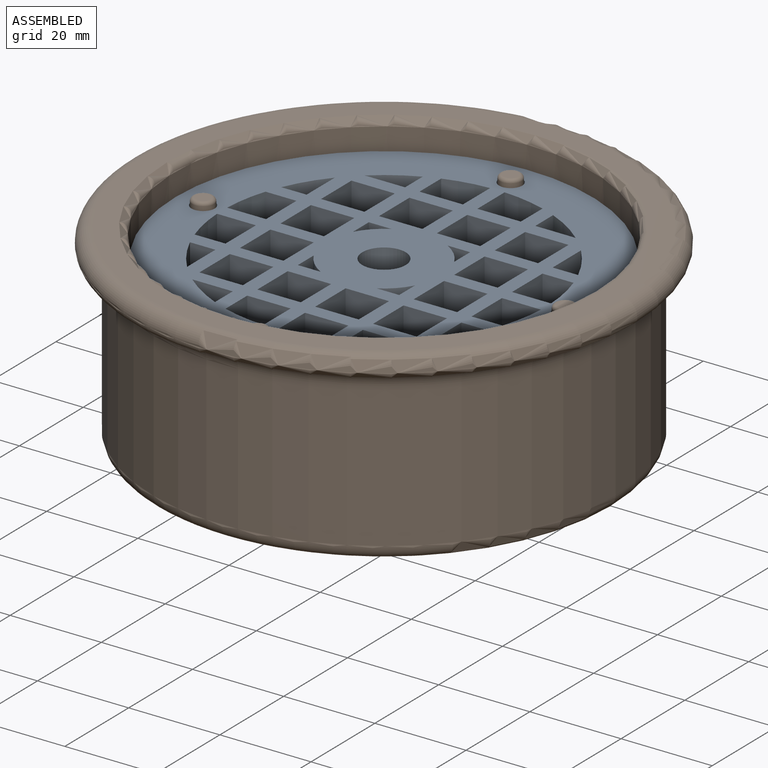
[diagram: assembled view]
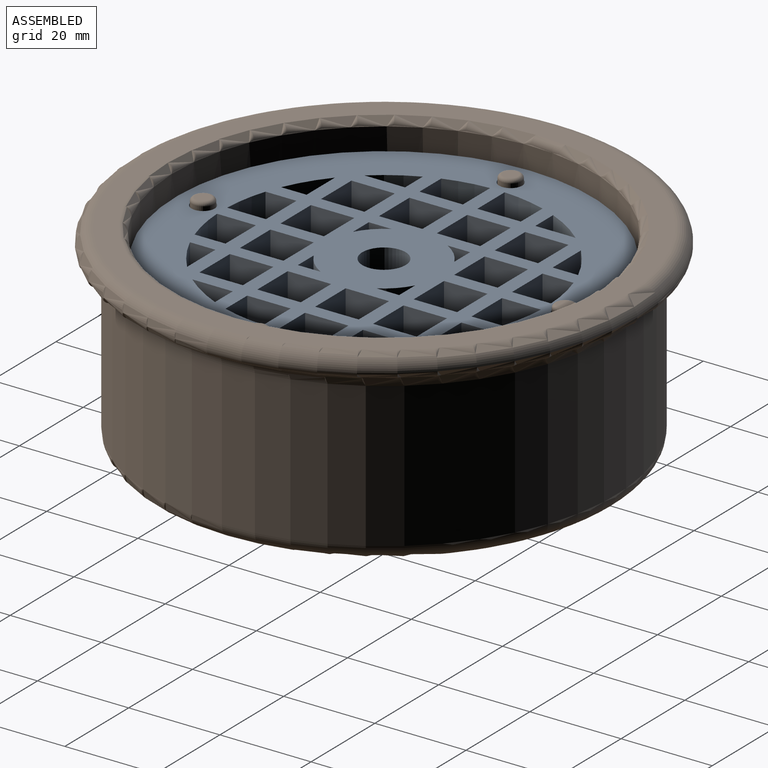
[diagram: assembled view, second angle]
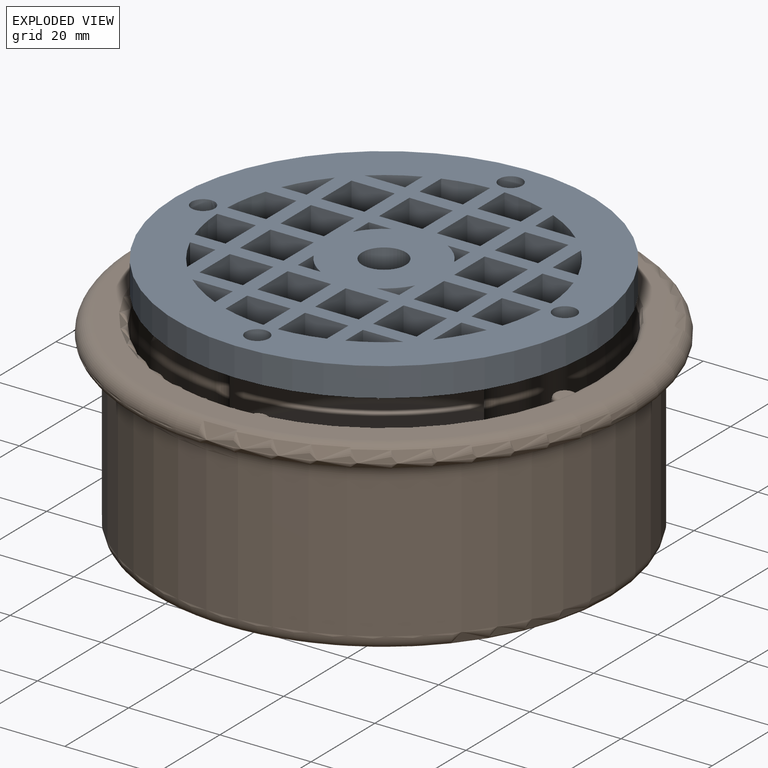
[diagram: exploded view]
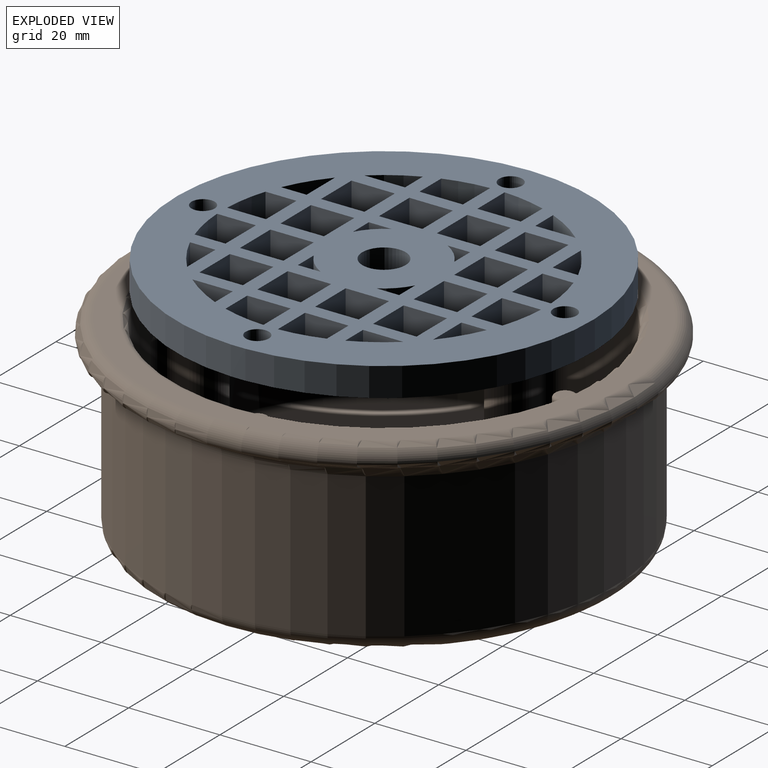
[diagram: exploded view, second angle]
ASSEMBLY  parts=2 mates=3
PART A: 128 faces, bbox 91.5x91.4x6.4 mm
  f0: plane 91.45x91.44mm, normal (0,0,-1), area 4465.3mm2, adj f1,f2,f3,f5,f6,f7,f8,f9
  f1: cylinder r=12.7mm len=6.35mm, axis (0,0,-1), area 45.2mm2, adj f0,f4,f122,f123
  f2: cylinder r=12.7mm len=6.35mm, axis (0,0,-1), area 45.2mm2, adj f0,f4,f120,f121
  f3: cylinder r=12.7mm len=6.35mm, axis (0,0,-1), area 45.2mm2, adj f0,f4,f118,f119
  f4: plane 91.45x91.44mm, normal (0,0,1), area 4465.3mm2, adj f1,f2,f3,f5,f6,f7,f8,f9
  f5: cylinder r=4.76mm len=9.53mm, axis (0,0,-1), area 169.5mm2, adj f0,f4,f125
  f6: cylinder r=12.7mm len=6.35mm, axis (0,0,-1), area 45.2mm2, adj f0,f4,f116,f117
  f7: plane 9.53x6.35mm, normal (1,0,0), area 60.5mm2, adj f0,f4,f8,f9
  f8: plane 9.53x6.35mm, normal (0,-1,0), area 60.5mm2, adj f0,f4,f7,f10
  f9: plane 9.53x6.35mm, normal (0,1,0), area 60.5mm2, adj f0,f4,f7,f10
  f10: plane 9.53x6.35mm, normal (-1,0,0), area 60.5mm2, adj f0,f4,f8,f9
  f11: plane 8.87x6.35mm, normal (0,-1,0), area 56.3mm2, adj f0,f4,f12,f101
  f12: plane 6.35x5.58mm, normal (-1,0,0), area 35.4mm2, adj f0,f4,f11,f101
  f13: plane 9.53x6.35mm, normal (1,0,0), area 60.5mm2, adj f0,f4,f14,f15
  f14: plane 9.53x6.35mm, normal (0,-1,0), area 60.5mm2, adj f0,f4,f13,f16
  f15: plane 9.53x6.35mm, normal (0,1,0), area 60.5mm2, adj f0,f4,f13,f16
  f16: plane 9.53x6.35mm, normal (-1,0,0), area 60.5mm2, adj f0,f4,f14,f15
  f17: plane 9.53x6.35mm, normal (1,0,0), area 60.5mm2, adj f0,f4,f18,f19
  f18: plane 9.53x6.35mm, normal (0,-1,0), area 60.5mm2, adj f0,f4,f17,f20
  f19: plane 9.53x6.35mm, normal (0,1,0), area 60.5mm2, adj f0,f4,f17,f20
  f20: plane 9.53x6.35mm, normal (-1,0,0), area 60.5mm2, adj f0,f4,f18,f19
  f21: plane 9.53x6.35mm, normal (1,0,0), area 60.5mm2, adj f0,f4,f22,f23
  f22: plane 9.53x6.35mm, normal (0,-1,0), area 60.5mm2, adj f0,f4,f21,f24
  f23: plane 9.53x6.35mm, normal (0,1,0), area 60.5mm2, adj f0,f4,f21,f24
  f24: plane 9.53x6.35mm, normal (-1,0,0), area 60.5mm2, adj f0,f4,f22,f23
  f25: plane 8.87x6.35mm, normal (0,1,0), area 56.3mm2, adj f0,f4,f26,f102
  f26: plane 6.35x5.58mm, normal (-1,0,0), area 35.4mm2, adj f0,f4,f25,f102
  f27: plane 9.53x6.35mm, normal (1,0,0), area 60.5mm2, adj f0,f4,f28,f29
  f28: plane 9.53x6.35mm, normal (0,-1,0), area 60.5mm2, adj f0,f4,f27,f30
  f29: plane 9.53x6.35mm, normal (0,1,0), area 60.5mm2, adj f0,f4,f27,f30
  f30: plane 9.53x6.35mm, normal (-1,0,0), area 60.5mm2, adj f0,f4,f28,f29
  f31: plane 6.79x6.35mm, normal (1,0,0), area 43.1mm2, adj f0,f4,f32,f103
  f32: plane 9.53x6.35mm, normal (0,-1,0), area 60.5mm2, adj f0,f4,f31,f33
  f33: plane 8.54x6.35mm, normal (-1,0,0), area 54.2mm2, adj f0,f4,f32,f103
  f34: plane 9.53x6.35mm, normal (1,0,0), area 60.5mm2, adj f0,f4,f35,f36
  f35: plane 9.53x6.35mm, normal (0,-1,0), area 60.5mm2, adj f0,f4,f34,f37
  f36: plane 9.53x6.35mm, normal (0,1,0), area 60.5mm2, adj f0,f4,f34,f37
  f37: plane 9.53x6.35mm, normal (-1,0,0), area 60.5mm2, adj f0,f4,f35,f36
  f38: plane 6.79x6.35mm, normal (1,0,0), area 43.1mm2, adj f0,f4,f39,f104
  f39: plane 9.53x6.35mm, normal (0,1,0), area 60.5mm2, adj f0,f4,f38,f40
  f40: plane 8.54x6.35mm, normal (-1,0,0), area 54.2mm2, adj f0,f4,f39,f104
  f41: plane 6.35x5.58mm, normal (0,-1,0), area 35.4mm2, adj f0,f4,f42,f105
  f42: plane 8.87x6.35mm, normal (-1,0,0), area 56.3mm2, adj f0,f4,f41,f105
  f43: plane 8.54x6.35mm, normal (0,-1,0), area 54.2mm2, adj f0,f4,f45,f106
  f44: plane 6.79x6.35mm, normal (0,1,0), area 43.1mm2, adj f0,f4,f45,f106
  f45: plane 9.53x6.35mm, normal (-1,0,0), area 60.5mm2, adj f0,f4,f43,f44
  f46: plane 6.79x6.35mm, normal (0,-1,0), area 43.1mm2, adj f0,f4,f48,f107
  f47: plane 8.54x6.35mm, normal (0,1,0), area 54.2mm2, adj f0,f4,f48,f107
  f48: plane 9.53x6.35mm, normal (-1,0,0), area 60.5mm2, adj f0,f4,f46,f47
  f49: plane 6.35x5.58mm, normal (0,1,0), area 35.4mm2, adj f0,f4,f50,f108
  f50: plane 8.87x6.35mm, normal (-1,0,0), area 56.3mm2, adj f0,f4,f49,f108
  f51: plane 8.87x6.35mm, normal (1,0,0), area 56.3mm2, adj f0,f4,f52,f109
  f52: plane 6.35x5.58mm, normal (0,-1,0), area 35.4mm2, adj f0,f4,f51,f109
  f53: plane 9.53x6.35mm, normal (1,0,0), area 60.5mm2, adj f0,f4,f54,f55
  f54: plane 8.54x6.35mm, normal (0,-1,0), area 54.2mm2, adj f0,f4,f53,f110
  f55: plane 6.79x6.35mm, normal (0,1,0), area 43.1mm2, adj f0,f4,f53,f110
  f56: plane 9.53x6.35mm, normal (1,0,0), area 60.5mm2, adj f0,f4,f57,f58
  f57: plane 6.79x6.35mm, normal (0,-1,0), area 43.1mm2, adj f0,f4,f56,f111
  f58: plane 8.54x6.35mm, normal (0,1,0), area 54.2mm2, adj f0,f4,f56,f111
  f59: plane 8.87x6.35mm, normal (1,0,0), area 56.3mm2, adj f0,f4,f60,f95
  f60: plane 6.35x5.58mm, normal (0,1,0), area 35.4mm2, adj f0,f4,f59,f95
  f61: plane 9.53x6.35mm, normal (1,0,0), area 60.5mm2, adj f0,f4,f62,f63
  f62: plane 9.53x6.35mm, normal (0,-1,0), area 60.5mm2, adj f0,f4,f61,f64
  f63: plane 9.53x6.35mm, normal (0,1,0), area 60.5mm2, adj f0,f4,f61,f64
  f64: plane 9.53x6.35mm, normal (-1,0,0), area 60.5mm2, adj f0,f4,f62,f63
  f65: plane 8.54x6.35mm, normal (1,0,0), area 54.2mm2, adj f0,f4,f66,f113
  f66: plane 9.53x6.35mm, normal (0,-1,0), area 60.5mm2, adj f0,f4,f65,f67
  f67: plane 6.79x6.35mm, normal (-1,0,0), area 43.1mm2, adj f0,f4,f66,f113
  f68: plane 9.53x6.35mm, normal (1,0,0), area 60.5mm2, adj f0,f4,f69,f70
  f69: plane 9.53x6.35mm, normal (0,-1,0), area 60.5mm2, adj f0,f4,f68,f71
  f70: plane 9.53x6.35mm, normal (0,1,0), area 60.5mm2, adj f0,f4,f68,f71
  f71: plane 9.53x6.35mm, normal (-1,0,0), area 60.5mm2, adj f0,f4,f69,f70
  f72: plane 8.54x6.35mm, normal (1,0,0), area 54.2mm2, adj f0,f4,f73,f114
  f73: plane 9.53x6.35mm, normal (0,1,0), area 60.5mm2, adj f0,f4,f72,f74
  f74: plane 6.79x6.35mm, normal (-1,0,0), area 43.1mm2, adj f0,f4,f73,f114
  f75: plane 9.53x6.35mm, normal (1,0,0), area 60.5mm2, adj f0,f4,f76,f77
  f76: plane 9.53x6.35mm, normal (0,-1,0), area 60.5mm2, adj f0,f4,f75,f78
  f77: plane 9.53x6.35mm, normal (0,1,0), area 60.5mm2, adj f0,f4,f75,f78
  f78: plane 9.53x6.35mm, normal (-1,0,0), area 60.5mm2, adj f0,f4,f76,f77
  f79: plane 6.35x5.58mm, normal (1,0,0), area 35.4mm2, adj f0,f4,f80,f115
  f80: plane 8.87x6.35mm, normal (0,-1,0), area 56.3mm2, adj f0,f4,f79,f115
  f81: plane 9.53x6.35mm, normal (1,0,0), area 60.5mm2, adj f0,f4,f82,f83
  f82: plane 9.53x6.35mm, normal (0,-1,0), area 60.5mm2, adj f0,f4,f81,f84
  f83: plane 9.53x6.35mm, normal (0,1,0), area 60.5mm2, adj f0,f4,f81,f84
  f84: plane 9.53x6.35mm, normal (-1,0,0), area 60.5mm2, adj f0,f4,f82,f83
  f85: plane 9.53x6.35mm, normal (1,0,0), area 60.5mm2, adj f0,f4,f86,f87
  f86: plane 9.53x6.35mm, normal (0,-1,0), area 60.5mm2, adj f0,f4,f85,f88
  f87: plane 9.53x6.35mm, normal (0,1,0), area 60.5mm2, adj f0,f4,f85,f88
  f88: plane 9.53x6.35mm, normal (-1,0,0), area 60.5mm2, adj f0,f4,f86,f87
  f89: plane 9.53x6.35mm, normal (1,0,0), area 60.5mm2, adj f0,f4,f90,f91
  f90: plane 9.53x6.35mm, normal (0,-1,0), area 60.5mm2, adj f0,f4,f89,f92
  f91: plane 9.53x6.35mm, normal (0,1,0), area 60.5mm2, adj f0,f4,f89,f92
  f92: plane 9.53x6.35mm, normal (-1,0,0), area 60.5mm2, adj f0,f4,f90,f91
  f93: plane 6.35x5.58mm, normal (1,0,0), area 35.4mm2, adj f0,f4,f94,f112
  f94: plane 8.87x6.35mm, normal (0,1,0), area 56.3mm2, adj f0,f4,f93,f112
  f95: cylinder r=35.56mm len=8.87mm, axis (0,0,-1), area 66.8mm2, adj f0,f4,f59,f60
  f96: cylinder r=45.72mm len=91.44mm, axis (0,0,-1), area 1804mm2, adj f0,f4,f124
  f97: cylinder r=2.54mm len=6.35mm, axis (0,0,-1), area 79.6mm2, adj f0,f4,f127
  f98: cylinder r=2.54mm len=6.35mm, axis (0,0,-1), area 101.3mm2, adj f0,f4
  f99: cylinder r=2.54mm len=6.35mm, axis (0,0,-1), area 50.7mm2, adj f0,f4,f126
  f100: cylinder r=2.54mm len=6.35mm, axis (0,0,-1), area 101.3mm2, adj f0,f4
  f101: cylinder r=35.56mm len=8.87mm, axis (0,0,-1), area 66.8mm2, adj f0,f4,f11,f12
  f102: cylinder r=35.56mm len=8.87mm, axis (0,0,-1), area 66.8mm2, adj f0,f4,f25,f26
  f103: cylinder r=35.56mm len=9.53mm, axis (0,0,-1), area 61.7mm2, adj f0,f4,f31,f33
  f104: cylinder r=35.56mm len=9.53mm, axis (0,0,-1), area 61.7mm2, adj f0,f4,f38,f40
  f105: cylinder r=35.56mm len=8.87mm, axis (0,0,-1), area 66.8mm2, adj f0,f4,f41,f42
  f106: cylinder r=35.56mm len=9.53mm, axis (0,0,-1), area 61.7mm2, adj f0,f4,f43,f44
  f107: cylinder r=35.56mm len=9.53mm, axis (0,0,-1), area 61.7mm2, adj f0,f4,f46,f47
  f108: cylinder r=35.56mm len=8.87mm, axis (0,0,-1), area 66.8mm2, adj f0,f4,f49,f50
  f109: cylinder r=35.56mm len=8.87mm, axis (0,0,-1), area 66.8mm2, adj f0,f4,f51,f52
  f110: cylinder r=35.56mm len=9.53mm, axis (0,0,-1), area 61.7mm2, adj f0,f4,f54,f55
  f111: cylinder r=35.56mm len=9.53mm, axis (0,0,-1), area 61.7mm2, adj f0,f4,f57,f58
  f112: cylinder r=35.56mm len=8.87mm, axis (0,0,-1), area 66.8mm2, adj f0,f4,f93,f94
  f113: cylinder r=35.56mm len=9.53mm, axis (0,0,-1), area 61.7mm2, adj f0,f4,f65,f67
  f114: cylinder r=35.56mm len=9.53mm, axis (0,0,-1), area 61.7mm2, adj f0,f4,f72,f74
  f115: cylinder r=35.56mm len=8.87mm, axis (0,0,-1), area 66.8mm2, adj f0,f4,f79,f80
  f116: plane 6.35x4.96mm, normal (1,0,0), area 31.5mm2, adj f0,f4,f6,f117
  f117: plane 6.35x4.96mm, normal (0,1,0), area 31.5mm2, adj f0,f4,f6,f116
  f118: plane 6.35x4.96mm, normal (1,0,0), area 31.5mm2, adj f0,f3,f4,f119
  f119: plane 6.35x4.96mm, normal (0,-1,0), area 31.5mm2, adj f0,f3,f4,f118
  f120: plane 6.35x4.96mm, normal (0,1,0), area 31.5mm2, adj f0,f2,f4,f121
  f121: plane 6.35x4.96mm, normal (-1,0,0), area 31.5mm2, adj f0,f2,f4,f120
  f122: plane 6.35x4.96mm, normal (0,-1,0), area 31.5mm2, adj f0,f1,f4,f123
  f123: plane 6.35x4.96mm, normal (-1,0,0), area 31.5mm2, adj f0,f1,f4,f122
  f124: extruded ~6.35x3.18mm, area 20.2mm2, adj f0,f4,f96
  f125: extruded ~6.35x3.18mm, area 20.6mm2, adj f0,f4,f5
  f126: extruded ~6.35x5.08mm, area 50.6mm2, adj f0,f4,f99
  f127: extruded ~6.35x3.18mm, area 21.8mm2, adj f0,f4,f97
PART B: 106 faces, bbox 120.3x120.3x42.9 mm
  f0: cylinder r=4.76mm len=22.86mm, axis (0,0,-1), area 329mm2, adj f1,f2,f49,f76
  f1: plane 22.86x2.72mm, normal (-1,0,0), area 62.2mm2, adj f0,f42,f51,f77
  f2: plane 22.86x2.72mm, normal (1,0,0), area 62.2mm2, adj f0,f41,f47,f75
  f3: plane 9.59x9.33mm, normal (0,0,1), area 31.3mm2, adj f7,f74,f75,f76,f77,f78,f96
  f4: plane 3.24x3.24mm, normal (0,0,1), area 8.2mm2, adj f6
  f5: cylinder r=2.38mm len=6.41mm, axis (0,0,-1), area 96mm2, adj f6,f7
  f6: torus R=1.62mm, axis (0,0,1), area 15.8mm2, adj f4,f5
  f7: torus R=3.14mm, axis (0,0,1), area 20mm2, adj f3,f5
  f8: cylinder r=46.04mm len=92.08mm, axis (0,0,-1), area 8524.8mm2, adj f37,f38,f39,f40,f41,f42,f43,f44
  f9: plane 88.06x88.06mm, normal (0,0,1), area 5820.1mm2, adj f45,f46,f47,f48,f49,f50,f51,f52
  f10: cylinder r=4.76mm len=22.86mm, axis (0,0,-1), area 329mm2, adj f11,f12,f52,f81
  f11: plane 22.86x2.72mm, normal (0,-1,0), area 62.2mm2, adj f10,f40,f50,f82
  f12: plane 22.86x2.72mm, normal (0,1,0), area 62.2mm2, adj f10,f39,f54,f80
  f13: plane 9.59x9.33mm, normal (0,0,1), area 31.3mm2, adj f17,f79,f80,f81,f82,f83,f93
  f14: plane 3.24x3.24mm, normal (0,0,1), area 8.2mm2, adj f16
  f15: cylinder r=2.38mm len=6.41mm, axis (0,0,-1), area 96mm2, adj f16,f17
  f16: torus R=1.62mm, axis (0,0,1), area 15.8mm2, adj f14,f15
  f17: torus R=3.14mm, axis (0,0,1), area 20mm2, adj f13,f15
  f18: cylinder r=4.76mm len=22.86mm, axis (0,0,-1), area 329mm2, adj f19,f20,f64,f86
  f19: plane 22.86x2.72mm, normal (1,0,0), area 62.2mm2, adj f18,f38,f62,f87
  f20: plane 22.86x2.72mm, normal (-1,0,0), area 62.2mm2, adj f18,f37,f66,f85
  f21: plane 9.59x9.33mm, normal (0,0,1), area 31.3mm2, adj f25,f84,f85,f86,f87,f88,f90
  f22: plane 3.24x3.24mm, normal (0,0,1), area 8.2mm2, adj f24
  f23: cylinder r=2.38mm len=6.41mm, axis (0,0,-1), area 96mm2, adj f24,f25
  f24: torus R=1.62mm, axis (0,0,1), area 15.8mm2, adj f22,f23
  f25: torus R=3.14mm, axis (0,0,1), area 20mm2, adj f21,f23
  f26: cylinder r=4.76mm len=22.86mm, axis (0,0,-1), area 329mm2, adj f27,f28,f61,f71
  f27: plane 22.86x2.72mm, normal (0,1,0), area 62.2mm2, adj f26,f43,f63,f70
  f28: plane 22.86x2.72mm, normal (0,-1,0), area 62.2mm2, adj f26,f44,f59,f72
  f29: plane 9.59x9.33mm, normal (0,0,1), area 31.3mm2, adj f32,f69,f70,f71,f72,f73,f99
  f30: plane 3.24x3.24mm, normal (0,0,1), area 8.2mm2, adj f33
  f31: cylinder r=2.38mm len=6.41mm, axis (0,0,-1), area 96mm2, adj f32,f33
  f32: torus R=3.14mm, axis (0,0,1), area 20mm2, adj f29,f31
  f33: torus R=1.62mm, axis (0,0,1), area 15.8mm2, adj f30,f31
  f34: plane 104.78x104.78mm, normal (0,0,1), area 1496.4mm2, adj f101,f104
  f35: plane 95.25x95.25mm, normal (0,0,-1), area 7125.6mm2, adj f105
  f36: cylinder r=50.8mm len=101.6mm, axis (0,0,-1), area 10134.1mm2, adj f102,f105
  f37: cylinder r=3.17mm len=22.86mm, axis (0,0,-1), area 127.5mm2, adj f8,f20,f68,f84
  f38: cylinder r=3.17mm len=22.86mm, axis (0,0,-1), area 127.5mm2, adj f8,f19,f60,f88
  f39: cylinder r=3.17mm len=22.86mm, axis (0,0,-1), area 127.5mm2, adj f8,f12,f56,f79
  f40: cylinder r=3.17mm len=22.86mm, axis (0,0,-1), area 127.5mm2, adj f8,f11,f48,f83
  f41: cylinder r=3.17mm len=22.86mm, axis (0,0,-1), area 127.5mm2, adj f2,f8,f45,f74
  f42: cylinder r=3.17mm len=22.86mm, axis (0,0,-1), area 127.5mm2, adj f1,f8,f53,f78
  f43: cylinder r=3.17mm len=22.86mm, axis (0,0,-1), area 127.5mm2, adj f8,f27,f65,f69
  f44: cylinder r=3.17mm len=22.86mm, axis (0,0,-1), area 127.5mm2, adj f8,f28,f57,f73
  f45: torus R=1.91mm, axis (0,0,1), area 9.5mm2, adj f9,f41,f46,f47
  f46: torus R=44.77mm, axis (0,0,1), area 109mm2, adj f8,f9,f45,f48
  f47: cylinder r=1.27mm len=2.76mm, axis (0,1,0), area 5.5mm2, adj f2,f9,f45,f49
  f48: torus R=1.91mm, axis (0,0,1), area 9.5mm2, adj f9,f40,f46,f50
  f49: torus R=6.03mm, axis (0,0,1), area 31.6mm2, adj f0,f9,f47,f51
  f50: cylinder r=1.27mm len=2.76mm, axis (1,0,0), area 5.5mm2, adj f9,f11,f48,f52
  f51: cylinder r=1.27mm len=2.76mm, axis (0,-1,0), area 5.5mm2, adj f1,f9,f49,f53
  f52: torus R=6.03mm, axis (0,0,1), area 31.6mm2, adj f9,f10,f50,f54
  f53: torus R=1.91mm, axis (0,0,1), area 9.5mm2, adj f9,f42,f51,f55
  f54: cylinder r=1.27mm len=2.76mm, axis (-1,0,0), area 5.5mm2, adj f9,f12,f52,f56
  f55: torus R=44.77mm, axis (0,0,1), area 109mm2, adj f8,f9,f53,f57
  f56: torus R=1.91mm, axis (0,0,1), area 9.5mm2, adj f9,f39,f54,f58
  f57: torus R=1.91mm, axis (0,0,1), area 9.5mm2, adj f9,f44,f55,f59
  f58: torus R=44.77mm, axis (0,0,1), area 109mm2, adj f8,f9,f56,f60
  f59: cylinder r=1.27mm len=2.76mm, axis (1,0,0), area 5.5mm2, adj f9,f28,f57,f61
  f60: torus R=1.91mm, axis (0,0,1), area 9.5mm2, adj f9,f38,f58,f62
  f61: torus R=6.03mm, axis (0,0,1), area 31.6mm2, adj f9,f26,f59,f63
  f62: cylinder r=1.27mm len=2.76mm, axis (0,1,0), area 5.5mm2, adj f9,f19,f60,f64
  f63: cylinder r=1.27mm len=2.76mm, axis (-1,0,0), area 5.5mm2, adj f9,f27,f61,f65
  f64: torus R=6.03mm, axis (0,0,1), area 31.6mm2, adj f9,f18,f62,f66
  f65: torus R=1.91mm, axis (0,0,1), area 9.5mm2, adj f9,f43,f63,f67
  f66: cylinder r=1.27mm len=2.76mm, axis (0,-1,0), area 5.5mm2, adj f9,f20,f64,f68
  f67: torus R=44.77mm, axis (0,0,1), area 109mm2, adj f8,f9,f65,f68
  f68: torus R=1.91mm, axis (0,0,1), area 9.5mm2, adj f9,f37,f66,f67
  f69: torus R=4.45mm, axis (0,0,1), area 8.5mm2, adj f29,f43,f70,f100
  f70: cylinder r=1.27mm len=2.72mm, axis (1,0,0), area 5.4mm2, adj f27,f29,f69,f71
  f71: torus R=3.49mm, axis (0,0,1), area 25.8mm2, adj f26,f29,f70,f72
  f72: cylinder r=1.27mm len=2.72mm, axis (-1,0,0), area 5.4mm2, adj f28,f29,f71,f73
  f73: torus R=4.45mm, axis (0,0,1), area 8.5mm2, adj f29,f44,f72,f98
  f74: torus R=4.45mm, axis (0,0,1), area 8.5mm2, adj f3,f41,f75,f95
  f75: cylinder r=1.27mm len=2.72mm, axis (0,-1,0), area 5.4mm2, adj f2,f3,f74,f76
  f76: torus R=3.49mm, axis (0,0,1), area 25.8mm2, adj f0,f3,f75,f77
  f77: cylinder r=1.27mm len=2.72mm, axis (0,1,0), area 5.4mm2, adj f1,f3,f76,f78
  f78: torus R=4.45mm, axis (0,0,1), area 8.5mm2, adj f3,f42,f77,f97
  f79: torus R=4.45mm, axis (0,0,1), area 8.5mm2, adj f13,f39,f80,f92
  f80: cylinder r=1.27mm len=2.72mm, axis (1,0,0), area 5.4mm2, adj f12,f13,f79,f81
  f81: torus R=3.49mm, axis (0,0,1), area 25.8mm2, adj f10,f13,f80,f82
  f82: cylinder r=1.27mm len=2.72mm, axis (-1,0,0), area 5.4mm2, adj f11,f13,f81,f83
  f83: torus R=4.45mm, axis (0,0,1), area 8.5mm2, adj f13,f40,f82,f94
  f84: torus R=4.45mm, axis (0,0,1), area 8.5mm2, adj f21,f37,f85,f89
  f85: cylinder r=1.27mm len=2.72mm, axis (0,1,0), area 5.4mm2, adj f20,f21,f84,f86
  f86: torus R=3.49mm, axis (0,0,1), area 25.8mm2, adj f18,f21,f85,f87
  f87: cylinder r=1.27mm len=2.72mm, axis (0,-1,0), area 5.4mm2, adj f19,f21,f86,f88
  f88: torus R=4.45mm, axis (0,0,1), area 8.5mm2, adj f21,f38,f87,f91
  f89: bspline ~4.27x1.78mm, area 1.7mm2, adj f8,f84,f90
  f90: torus R=45.53mm, axis (0,0,1), area 7.7mm2, adj f8,f21,f89,f91
  f91: bspline ~3.72x1.78mm, area 1.7mm2, adj f8,f88,f90
  f92: bspline ~3.72x1.78mm, area 1.7mm2, adj f8,f79,f93
  f93: torus R=45.53mm, axis (0,0,1), area 7.7mm2, adj f8,f13,f92,f94
  f94: bspline ~4.27x1.78mm, area 1.7mm2, adj f8,f83,f93
  f95: bspline ~4.27x1.78mm, area 1.7mm2, adj f8,f74,f96
  f96: torus R=45.53mm, axis (0,0,1), area 7.7mm2, adj f3,f8,f95,f97
  f97: bspline ~3.72x1.78mm, area 1.7mm2, adj f8,f78,f96
  f98: bspline ~4.27x1.78mm, area 1.7mm2, adj f8,f73,f99
  f99: torus R=45.53mm, axis (0,0,1), area 7.7mm2, adj f8,f29,f98,f100
  f100: bspline ~3.72x1.78mm, area 1.7mm2, adj f8,f69,f99
  f101: torus R=52.39mm, axis (0,0,1), area 1705mm2, adj f34,f103
  f102: torus R=53.98mm, axis (0,0,1), area 1628mm2, adj f36,f103
  f103: torus R=53.98mm, axis (0,0,1), area 861.5mm2, adj f101,f102
  f104: torus R=47.62mm, axis (0,0,1), area 730.4mm2, adj f8,f34
  f105: torus R=47.62mm, axis (0,0,1), area 1555.7mm2, adj f35,f36
PLACE A t=(0,0,30.16)mm
PLACE B at identity fixed
MATE slider A.f98 <-> B.f5  axis (0,0,1) through (0,-39.69,36.51)mm
MATE planar A.f0 <-> B.f3  axis (0,0,-1) through (41.67,-1.59,30.16)mm
MATE slider A.f100 <-> B.f23  axis (0,0,-1) through (0,39.69,36.51)mm
